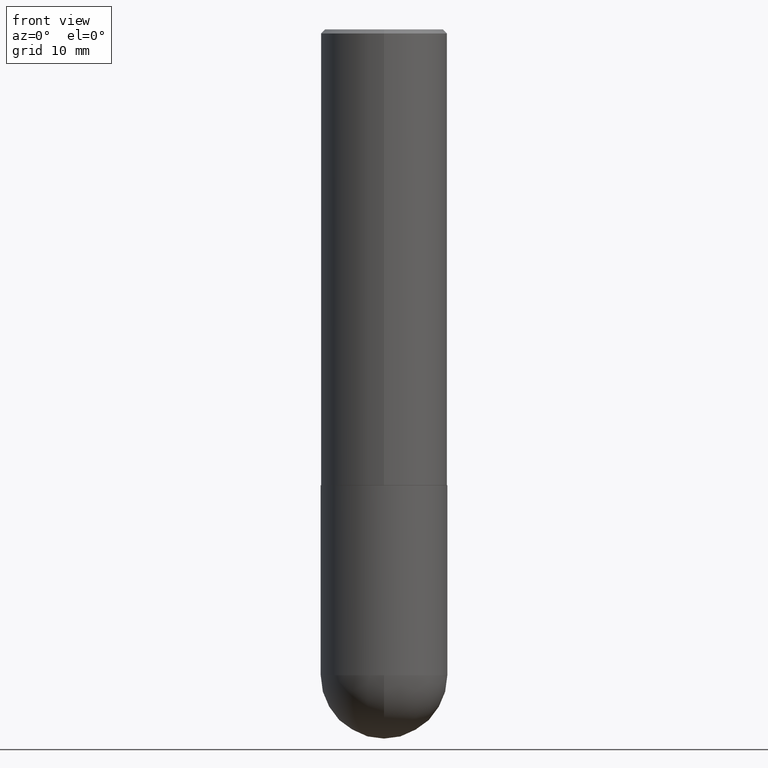
[diagram: clean part render]
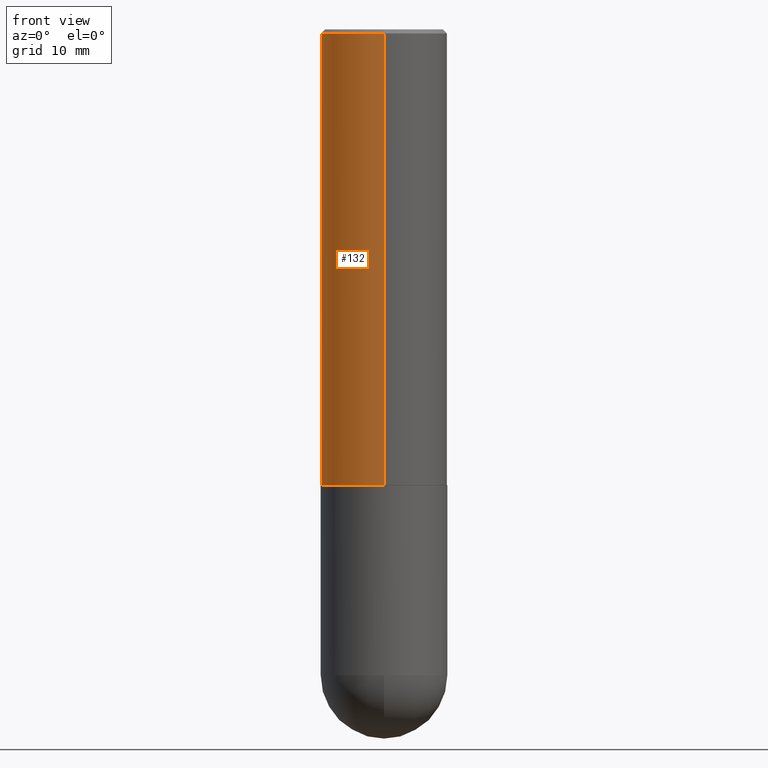
[diagram: same view with one face highlighted and labeled with its STEP entity id]
A machine part, front view. The second image highlights one B-rep face of the part: STEP entity #132.
In plain terms, the highlighted cylindrical surface (partial cylindrical patch) has radius 7.9375 mm, axis along (-0, 0, 1).
Its self-contained STEP definition (entity closure, byte-faithful):
#29 = VERTEX_POINT ( 'NONE', #133 ) ;
#46 = CARTESIAN_POINT ( 'NONE',  ( 0.000000000000000000, 0.000000000000000000, 0.000000000000000000 ) ) ;
#51 = LINE ( 'NONE', #205, #312 ) ;
#52 = DIRECTION ( 'NONE',  ( -6.982962677686265922E-15, -1.000000000000000000, 3.496765431890253764E-15 ) ) ;
#83 = CARTESIAN_POINT ( 'NONE',  ( 2.182175836776959530E-15, 0.3125000000000000555, -0.02000000000000116615 ) ) ;
#84 = DIRECTION ( 'NONE',  ( -2.445464617341479708E-29, 3.491487337505676197E-15, 1.000000000000000000 ) ) ;
#86 = CYLINDRICAL_SURFACE ( 'NONE', #116, 0.3125000000000002220 ) ;
#111 = ORIENTED_EDGE ( 'NONE', *, *, #202, .F. ) ;
#116 = AXIS2_PLACEMENT_3D ( 'NONE', #46, #396, #247 ) ;
#121 = DIRECTION ( 'NONE',  ( -2.445464617341479708E-29, 3.491487337505676197E-15, 1.000000000000000000 ) ) ;
#127 = EDGE_LOOP ( 'NONE', ( #111, #374, #272, #185 ) ) ;
#132 = ADVANCED_FACE ( 'NONE', ( #328 ), #86, .T. ) ;
#133 = CARTESIAN_POINT ( 'NONE',  ( 2.220446049250342269E-15, 0.3124999999999924505, -2.249000000000000998 ) ) ;
#147 = CIRCLE ( 'NONE', #392, 0.3125000000000001665 ) ;
#149 = DIRECTION ( 'NONE',  ( -2.445464617341479708E-29, 3.491487337505675803E-15, 1.000000000000000000 ) ) ;
#167 = AXIS2_PLACEMENT_3D ( 'NONE', #210, #121, #52 ) ;
#182 = DIRECTION ( 'NONE',  ( -2.445464617341479708E-29, 3.491487337505675803E-15, 1.000000000000000000 ) ) ;
#185 = ORIENTED_EDGE ( 'NONE', *, *, #361, .F. ) ;
#202 = EDGE_CURVE ( 'NONE', #29, #277, #333, .T. ) ;
#205 = CARTESIAN_POINT ( 'NONE',  ( -2.182175836776959530E-15, -0.3125000000000002220, 1.091089792970524551E-15 ) ) ;
#210 = CARTESIAN_POINT ( 'NONE',  ( 5.499849924400987156E-29, -7.852355022050265044E-15, -2.248999999999999666 ) ) ;
#234 = EDGE_CURVE ( 'NONE', #377, #395, #51, .T. ) ;
#240 = CARTESIAN_POINT ( 'NONE',  ( -2.182175836776905099E-15, -0.3125000000000081601, -2.248999999999998778 ) ) ;
#244 = DIRECTION ( 'NONE',  ( -6.982962677686265133E-15, -1.000000000000000000, 3.496765431890254947E-15 ) ) ;
#247 = DIRECTION ( 'NONE',  ( -6.982962677686265922E-15, -1.000000000000000000, 3.491487337505676197E-15 ) ) ;
#272 = ORIENTED_EDGE ( 'NONE', *, *, #234, .T. ) ;
#277 = VERTEX_POINT ( 'NONE', #83 ) ;
#287 = EDGE_CURVE ( 'NONE', #29, #377, #342, .T. ) ;
#310 = CARTESIAN_POINT ( 'NONE',  ( 2.220446049250314264E-15, 0.3125000000000002220, -1.091089792970524551E-15 ) ) ;
#312 = VECTOR ( 'NONE', #182, 39.37007874015748143 ) ;
#328 = FACE_OUTER_BOUND ( 'NONE', #127, .T. ) ;
#333 = LINE ( 'NONE', #310, #349 ) ;
#342 = CIRCLE ( 'NONE', #167, 0.3125000000000002776 ) ;
#349 = VECTOR ( 'NONE', #149, 39.37007874015748143 ) ;
#361 = EDGE_CURVE ( 'NONE', #277, #395, #147, .T. ) ;
#373 = CARTESIAN_POINT ( 'NONE',  ( 4.890929234682977809E-31, -6.982974675011377983E-17, -0.02000000000000007327 ) ) ;
#374 = ORIENTED_EDGE ( 'NONE', *, *, #287, .T. ) ;
#377 = VERTEX_POINT ( 'NONE', #240 ) ;
#392 = AXIS2_PLACEMENT_3D ( 'NONE', #373, #84, #244 ) ;
#395 = VERTEX_POINT ( 'NONE', #409 ) ;
#396 = DIRECTION ( 'NONE',  ( -2.445464617341479708E-29, 3.491487337505676197E-15, 1.000000000000000000 ) ) ;
#409 = CARTESIAN_POINT ( 'NONE',  ( -2.143905624303604008E-15, -0.3125000000000002220, -0.01999999999999898040 ) ) ;